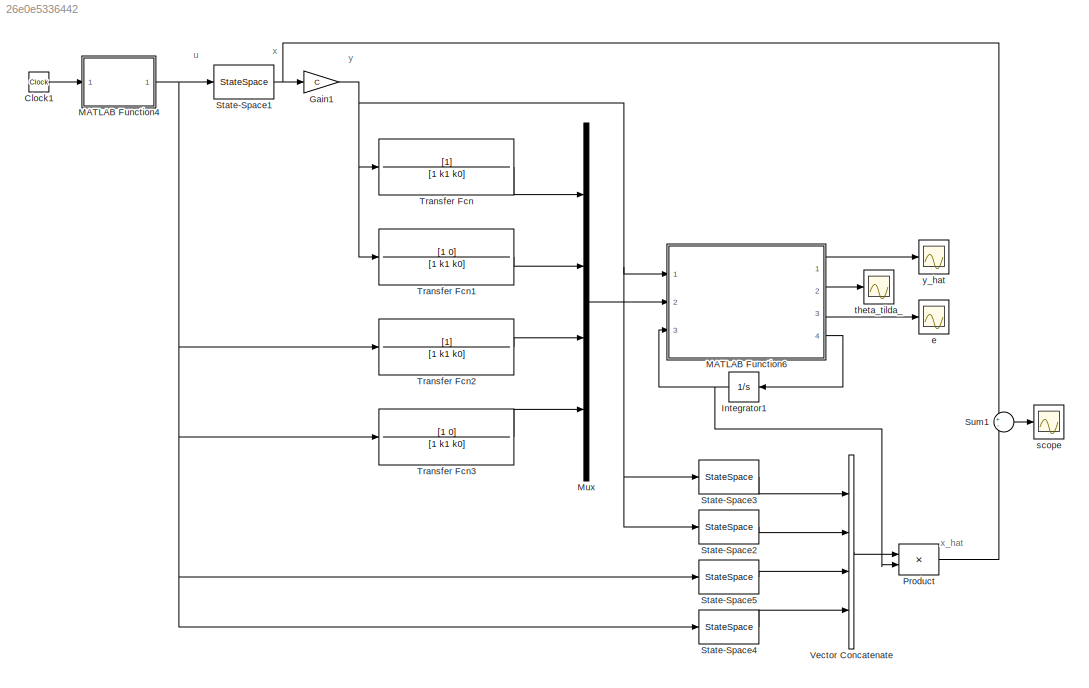
MODEL slx_26e0e5336442
KIND model
CONFIG AbsTol = auto
CONFIG EnableMultiTasking = off
CONFIG FixedStep = auto
CONFIG InitFcn = lambda = 5;\n\na0 = 1; a1 = 5;\nb0 = 6; b1 = 1;\nk1 = 0.6; k0 = 0.09;\n\nA = [-a1 1; -a0 0];\nb = [b1; b0];\n\nA0 = [-k1 1; -k0 0];\n\ntheta = [k0-a0; k1-a1; b0; b1];\n\nC = [1 0]
CONFIG MaxStep = 0.01
CONFIG MinStep = auto
CONFIG RelTol = 1e-3
CONFIG SampleTimeConstraint = Unconstrained
CONFIG SolverName = VariableStepAuto
CONFIG StartTime = 0.0
CONFIG StopTime = 350000
BLOCK [Clock] Clock1
BLOCK [Gain] Gain1
  Gain = C
  Multiplication = Matrix(K*u)
BLOCK [Integrator] Integrator1
  InitialCondition = [0; 0; 0; 0]
  NameLocation = top
  Ports = [1, 1]
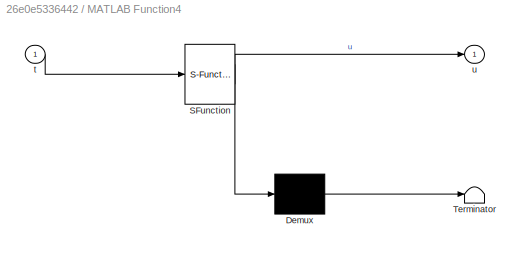
BLOCK [SubSystem] MATLAB Function4
  ErrorFcn = Stateflow.Translate.translate
  PermitHierarchicalResolution = ExplicitOnly
  Ports = [1, 1]
  RequestExecContextInheritance = off
  SFBlockType = MATLAB Function
  TreatAsAtomicUnit = on
BLOCK [Demux] MATLAB Function4/ Demux 
  Outputs = 1
  Ports = [1, 1]
BLOCK [S-Function] MATLAB Function4/ SFunction 
  EnableBusSupport = on
  FunctionName = sf_sfun
  PortCounts = [1 2]
  Ports = [1, 2]
  SFcnIsStateOwnerBlock = off
  SFunctionDeploymentMode = off
  Tag = Stateflow S-Function 4
BLOCK [Terminator] MATLAB Function4/ Terminator 
BLOCK [Inport] MATLAB Function4/t
BLOCK [Outport] MATLAB Function4/u
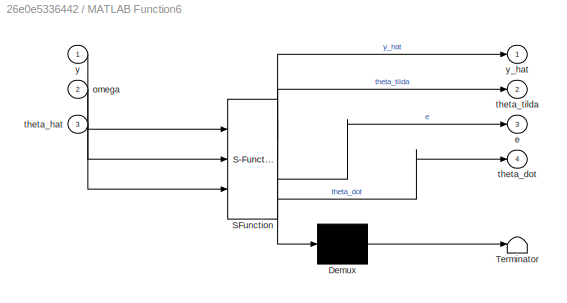
BLOCK [SubSystem] MATLAB Function6
  ErrorFcn = Stateflow.Translate.translate
  PermitHierarchicalResolution = ExplicitOnly
  Ports = [3, 4]
  RequestExecContextInheritance = off
  SFBlockType = MATLAB Function
  TreatAsAtomicUnit = on
BLOCK [Demux] MATLAB Function6/ Demux 
  Outputs = 1
  Ports = [1, 1]
BLOCK [S-Function] MATLAB Function6/ SFunction 
  EnableBusSupport = on
  FunctionName = sf_sfun
  Parameters = theta
  PortCounts = [3 5]
  Ports = [3, 5]
  SFcnIsStateOwnerBlock = off
  SFunctionDeploymentMode = off
  Tag = Stateflow S-Function 6
BLOCK [Terminator] MATLAB Function6/ Terminator 
BLOCK [Outport] MATLAB Function6/e
  Port = 3
BLOCK [Inport] MATLAB Function6/omega
  Port = 2
BLOCK [Outport] MATLAB Function6/theta_dot
  Port = 4
BLOCK [Inport] MATLAB Function6/theta_hat
  Port = 3
BLOCK [Outport] MATLAB Function6/theta_tilda
  Port = 2
BLOCK [Inport] MATLAB Function6/y
BLOCK [Outport] MATLAB Function6/y_hat
BLOCK [Mux] Mux
  DisplayOption = bar
  Ports = [4, 1]
BLOCK [Product] Product
  Multiplication = Matrix(*)
  Ports = [2, 1]
BLOCK [StateSpace] State-Space1
  A = A
  B = b
  C = eye(2)
  D = [0; 0]
  InitialCondition = [0; 0]
  Ports = [1, 1]
BLOCK [StateSpace] State-Space2
  A = A0
  B = [1; 0]
  C = eye(2)
  D = [0; 0]
  InitialCondition = [0; 0]
  Ports = [1, 1]
BLOCK [StateSpace] State-Space3
  A = A0
  B = [0; 1]
  C = eye(2)
  D = [0; 0]
  InitialCondition = [0; 0]
  Ports = [1, 1]
BLOCK [StateSpace] State-Space4
  A = A0
  B = [1; 0]
  C = eye(2)
  D = [0; 0]
  InitialCondition = [0; 0]
  Ports = [1, 1]
BLOCK [StateSpace] State-Space5
  A = A0
  B = [0; 1]
  C = eye(2)
  D = [0; 0]
  InitialCondition = [0; 0]
  Ports = [1, 1]
BLOCK [Sum] Sum1
  Inputs = +-
  Ports = [2, 1]
BLOCK [TransferFcn] Transfer Fcn
  Denominator = [1 k1 k0]
BLOCK [TransferFcn] Transfer Fcn1
  Denominator = [1 k1 k0]
  Numerator = [1 0]
BLOCK [TransferFcn] Transfer Fcn2
  Denominator = [1 k1 k0]
BLOCK [TransferFcn] Transfer Fcn3
  Denominator = [1 k1 k0]
  Numerator = [1 0]
BLOCK [Concatenate] Vector Concatenate
  ConcatenateDimension = 2
  Mode = Multidimensional array
  NumInputs = 4
  Ports = [4, 1]
BLOCK [Scope] e
  Floating = off
  NumInputPorts = 1
  Ports = [1]
  ScopeSpecificationString = Simulink.scopes.TimeScopeBlockCfg('CurrentConfiguration', extmgr.ConfigurationSet(extmgr.Configuration('Core','General UI',true,'FigureColor',[0.8 0.8 0.8]),extmgr.Configuration('Core','Source UI',true),extmgr.Configuration('Sources','WiredSimulink',true,'DataLoggingVariableName','ScopeData3'),extmgr.Configuration('Visuals','Time Domain',true,'SerializedDisplays',{struct('MinYLimReal','-1.4115','M...<+1536ch>
BLOCK [Scope] scope
  Floating = off
  NumInputPorts = 1
  Ports = [1]
  ScopeSpecificationString = Simulink.scopes.TimeScopeBlockCfg('CurrentConfiguration', extmgr.ConfigurationSet(extmgr.Configuration('Core','General UI',true,'FigureColor',[0.8 0.8 0.8]),extmgr.Configuration('Core','Source UI',true),extmgr.Configuration('Sources','WiredSimulink',true,'DataLoggingVariableName','ScopeData4'),extmgr.Configuration('Visuals','Time Domain',true,'SerializedDisplays',{struct('MinYLimReal','-102.61562'...<+1582ch>
BLOCK [Scope] theta_tilda_
  Floating = off
  NumInputPorts = 1
  Ports = [1]
  ScopeSpecificationString = Simulink.scopes.TimeScopeBlockCfg('CurrentConfiguration', extmgr.ConfigurationSet(extmgr.Configuration('Core','General UI',true,'FigureColor',[0.8 0.8 0.8]),extmgr.Configuration('Core','Source UI',true),extmgr.Configuration('Sources','WiredSimulink',true,'DataLoggingVariableName','ScopeData2'),extmgr.Configuration('Visuals','Time Domain',true,'SerializedDisplays',{struct('MinYLimReal','-3.45491','...<+1695ch>
BLOCK [Scope] y_hat
  Floating = off
  NumInputPorts = 1
  Ports = [1]
  ScopeSpecificationString = Simulink.scopes.TimeScopeBlockCfg('CurrentConfiguration', extmgr.ConfigurationSet(extmgr.Configuration('Core','General UI',true,'FigureColor',[0.8 0.8 0.8]),extmgr.Configuration('Core','Source UI',true),extmgr.Configuration('Sources','WiredSimulink',true,'DataLoggingVariableName','ScopeData1'),extmgr.Configuration('Visuals','Time Domain',true,'SerializedDisplays',{struct('MinYLimReal','-1.80779','...<+1545ch>
ANNOTATION (root): u
ANNOTATION (root): x
ANNOTATION (root): x_hat
ANNOTATION (root): y
LINE Clock1:1 -> MATLAB Function4:1
NET Gain1:1 -> MATLAB Function6:1, State-Space2:1, State-Space3:1, Transfer Fcn1:1, Transfer Fcn:1
NET Integrator1:1 -> MATLAB Function6:3, Product:2
NET MATLAB Function4:1 -> State-Space1:1, State-Space4:1, State-Space5:1, Transfer Fcn2:1, Transfer Fcn3:1
LINE MATLAB Function6:1 -> y_hat:1
LINE MATLAB Function6:2 -> theta_tilda_:1
LINE MATLAB Function6:3 -> e:1
LINE MATLAB Function6:4 -> Integrator1:1
LINE Mux:1 -> MATLAB Function6:2
LINE Product:1 -> Sum1:2
NET State-Space1:1 -> Gain1:1, Sum1:1
LINE State-Space2:1 -> Vector Concatenate:2
LINE State-Space3:1 -> Vector Concatenate:1
LINE State-Space4:1 -> Vector Concatenate:4
LINE State-Space5:1 -> Vector Concatenate:3
LINE Sum1:1 -> scope:1
LINE Transfer Fcn1:1 -> Mux:2
LINE Transfer Fcn2:1 -> Mux:3
LINE Transfer Fcn3:1 -> Mux:4
LINE Transfer Fcn:1 -> Mux:1
LINE Vector Concatenate:1 -> Product:1
note: NET lines group one-source signal fan-out (src -> all destinations, sorted); 1:1 wires keep LINE
CHART MATLAB Function4 states=1 transitions=1
  STATE_LABEL 'eML_blk_kernel()'
  STATE_LABEL 'SCRIPT:\nfunction u = fcn(t)\n\nu = 10*sin(t)+5*cos(2*t)+4*cos(4*t)+3*cos(8*t);\n'
CHART MATLAB Function6 states=1 transitions=1
  STATE_LABEL 'eML_blk_kernel()'
  STATE_LABEL "SCRIPT:\nfunction [y_hat, theta_tilda, e, theta_dot] = fcn(y, omega, theta_hat, theta)\n\ntheta_tilda = theta - theta_hat;\n\ngamma = 10;\n\ny_hat = theta_hat'*omega;\n\ne = y - y_hat;\n\ntheta_dot = gamma*omega*e;"
CHART  states=0 transitions=0
CHART  states=0 transitions=0
